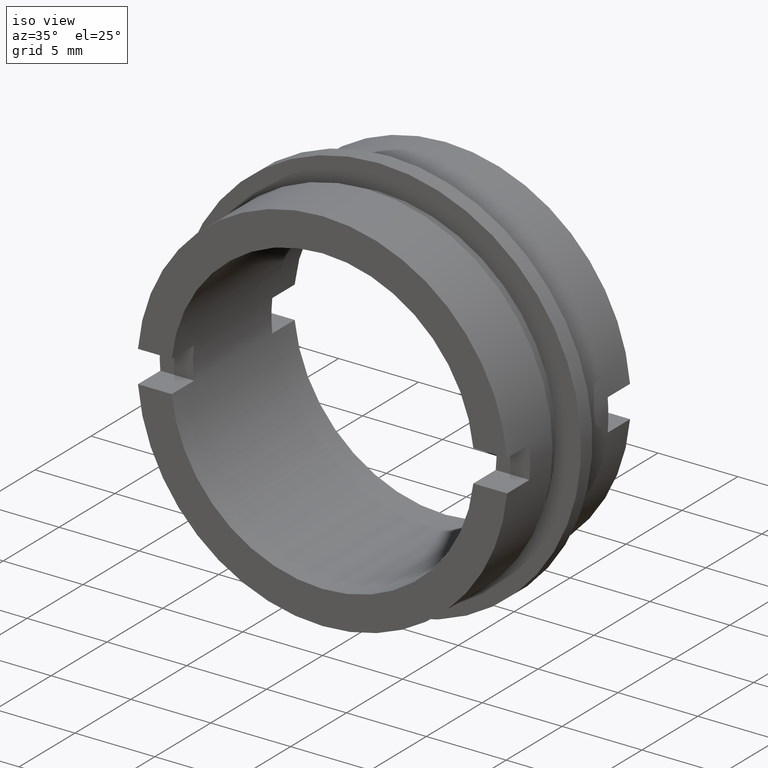
[diagram: clean part render]
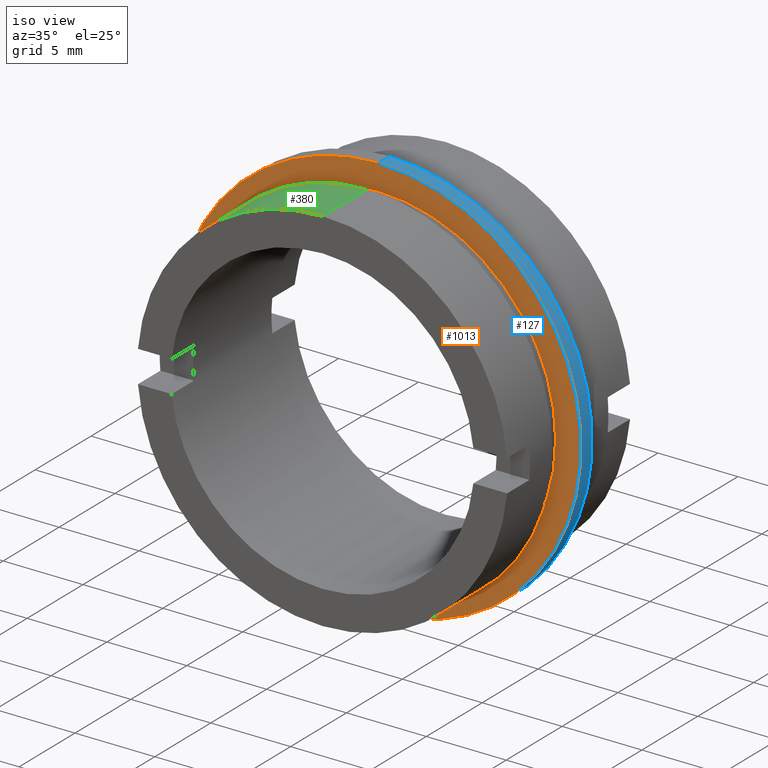
[diagram: same view with three faces highlighted in distinct colors, each labeled with its STEP entity id]
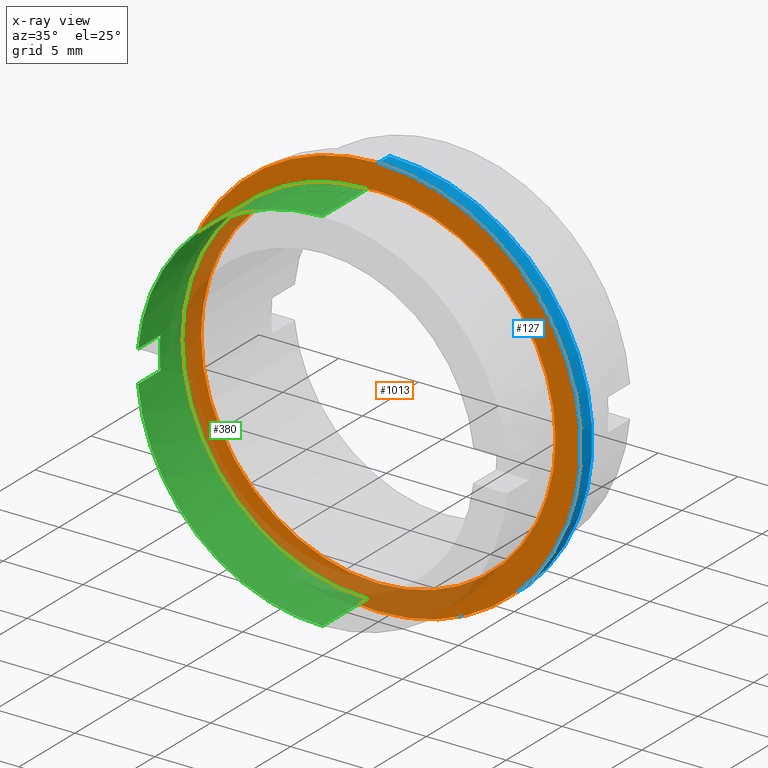
[diagram: x-ray of the same camera — body ghosted, the three highlighted faces saturated]
A machine part, iso view with three faces highlighted in distinct colors.
The next image is the same camera in x-ray (body ghosted, the three faces saturated) — at least one of them is partly hidden behind the body in this view.
Their STEP definitions:

[orange] entity #1013 — the highlighted planar face has unit normal (0, -1, 0).
#14 = AXIS2_PLACEMENT_3D ( 'NONE', #586, #1104, #495 ) ;
#35 = AXIS2_PLACEMENT_3D ( 'NONE', #533, #1051, #438 ) ;
#36 = EDGE_LOOP ( 'NONE', ( #754, #473 ) ) ;
#48 = VERTEX_POINT ( 'NONE', #878 ) ;
#147 = EDGE_CURVE ( 'NONE', #567, #981, #762, .T. ) ;
#148 = DIRECTION ( 'NONE',  ( -0.0000000000000000000, 1.000000000000000000, -0.0000000000000000000 ) ) ;
#154 = CARTESIAN_POINT ( 'NONE',  ( -12.69999999999999900, 5.000000000000000000, 0.0000000000000000000 ) ) ;
#184 = EDGE_LOOP ( 'NONE', ( #638, #450 ) ) ;
#285 = CARTESIAN_POINT ( 'NONE',  ( 0.0000000000000000000, 5.000000000000000900, 11.09999999999999800 ) ) ;
#322 = CIRCLE ( 'NONE', #14, 12.69999999999999900 ) ;
#328 = CARTESIAN_POINT ( 'NONE',  ( 0.0000000000000000000, 5.000000000000000900, 12.69999999999999900 ) ) ;
#356 = AXIS2_PLACEMENT_3D ( 'NONE', #154, #504, #1037 ) ;
#412 = DIRECTION ( 'NONE',  ( 0.0000000000000000000, 0.0000000000000000000, 1.000000000000000000 ) ) ;
#438 = DIRECTION ( 'NONE',  ( 0.0000000000000000000, 0.0000000000000000000, 1.000000000000000000 ) ) ;
#439 = CIRCLE ( 'NONE', #35, 11.09999999999999800 ) ;
#450 = ORIENTED_EDGE ( 'NONE', *, *, #747, .F. ) ;
#473 = ORIENTED_EDGE ( 'NONE', *, *, #599, .T. ) ;
#495 = DIRECTION ( 'NONE',  ( 0.0000000000000000000, 0.0000000000000000000, 1.000000000000000000 ) ) ;
#504 = DIRECTION ( 'NONE',  ( 0.0000000000000000000, -1.000000000000000000, 0.0000000000000000000 ) ) ;
#533 = CARTESIAN_POINT ( 'NONE',  ( 0.0000000000000000000, 5.000000000000000900, 0.0000000000000000000 ) ) ;
#538 = CIRCLE ( 'NONE', #872, 12.69999999999999900 ) ;
#567 = VERTEX_POINT ( 'NONE', #285 ) ;
#586 = CARTESIAN_POINT ( 'NONE',  ( 0.0000000000000000000, 5.000000000000000900, 0.0000000000000000000 ) ) ;
#590 = FACE_BOUND ( 'NONE', #36, .T. ) ;
#599 = EDGE_CURVE ( 'NONE', #981, #567, #439, .T. ) ;
#606 = AXIS2_PLACEMENT_3D ( 'NONE', #885, #714, #412 ) ;
#638 = ORIENTED_EDGE ( 'NONE', *, *, #797, .F. ) ;
#681 = DIRECTION ( 'NONE',  ( 0.0000000000000000000, 0.0000000000000000000, 1.000000000000000000 ) ) ;
#714 = DIRECTION ( 'NONE',  ( -0.0000000000000000000, 1.000000000000000000, -0.0000000000000000000 ) ) ;
#747 = EDGE_CURVE ( 'NONE', #48, #994, #538, .T. ) ;
#754 = ORIENTED_EDGE ( 'NONE', *, *, #147, .T. ) ;
#762 = CIRCLE ( 'NONE', #606, 11.09999999999999800 ) ;
#782 = CARTESIAN_POINT ( 'NONE',  ( 0.0000000000000000000, 5.000000000000000900, 0.0000000000000000000 ) ) ;
#797 = EDGE_CURVE ( 'NONE', #994, #48, #322, .T. ) ;
#872 = AXIS2_PLACEMENT_3D ( 'NONE', #782, #148, #681 ) ;
#878 = CARTESIAN_POINT ( 'NONE',  ( 1.555301434917138400E-015, 5.000000000000000900, -12.69999999999999900 ) ) ;
#885 = CARTESIAN_POINT ( 'NONE',  ( 0.0000000000000000000, 5.000000000000000900, 0.0000000000000000000 ) ) ;
#959 = CARTESIAN_POINT ( 'NONE',  ( 1.359357947053562000E-015, 5.000000000000000900, -11.09999999999999800 ) ) ;
#981 = VERTEX_POINT ( 'NONE', #959 ) ;
#994 = VERTEX_POINT ( 'NONE', #328 ) ;
#1013 = ADVANCED_FACE ( 'NONE', ( #590, #1052 ), #1116, .T. ) ;
#1037 = DIRECTION ( 'NONE',  ( 0.0000000000000000000, -0.0000000000000000000, -1.000000000000000000 ) ) ;
#1051 = DIRECTION ( 'NONE',  ( -0.0000000000000000000, 1.000000000000000000, -0.0000000000000000000 ) ) ;
#1052 = FACE_OUTER_BOUND ( 'NONE', #184, .T. ) ;
#1104 = DIRECTION ( 'NONE',  ( -0.0000000000000000000, 1.000000000000000000, -0.0000000000000000000 ) ) ;
#1116 = PLANE ( 'NONE',  #356 ) ;

[blue] entity #127 — the highlighted cylindrical surface (partial cylindrical patch) has radius 12.7 mm, axis along (-0, 1, -0).
#14 = AXIS2_PLACEMENT_3D ( 'NONE', #586, #1104, #495 ) ;
#48 = VERTEX_POINT ( 'NONE', #878 ) ;
#80 = LINE ( 'NONE', #713, #763 ) ;
#127 = ADVANCED_FACE ( 'NONE', ( #555 ), #989, .T. ) ;
#278 = ORIENTED_EDGE ( 'NONE', *, *, #379, .T. ) ;
#322 = CIRCLE ( 'NONE', #14, 12.69999999999999900 ) ;
#328 = CARTESIAN_POINT ( 'NONE',  ( 0.0000000000000000000, 5.000000000000000900, 12.69999999999999900 ) ) ;
#379 = EDGE_CURVE ( 'NONE', #48, #580, #881, .T. ) ;
#407 = CARTESIAN_POINT ( 'NONE',  ( 0.0000000000000000000, 5.999999999999998200, 12.69999999999999900 ) ) ;
#447 = DIRECTION ( 'NONE',  ( 0.0000000000000000000, 0.0000000000000000000, 1.000000000000000000 ) ) ;
#455 = DIRECTION ( 'NONE',  ( -0.0000000000000000000, 1.000000000000000000, -0.0000000000000000000 ) ) ;
#456 = EDGE_CURVE ( 'NONE', #1071, #580, #943, .T. ) ;
#466 = DIRECTION ( 'NONE',  ( 0.0000000000000000000, 0.0000000000000000000, 1.000000000000000000 ) ) ;
#495 = DIRECTION ( 'NONE',  ( 0.0000000000000000000, 0.0000000000000000000, 1.000000000000000000 ) ) ;
#555 = FACE_OUTER_BOUND ( 'NONE', #658, .T. ) ;
#562 = CARTESIAN_POINT ( 'NONE',  ( 0.0000000000000000000, 5.999999999999998200, 0.0000000000000000000 ) ) ;
#575 = EDGE_CURVE ( 'NONE', #994, #1071, #80, .T. ) ;
#580 = VERTEX_POINT ( 'NONE', #971 ) ;
#586 = CARTESIAN_POINT ( 'NONE',  ( 0.0000000000000000000, 5.000000000000000900, 0.0000000000000000000 ) ) ;
#609 = ORIENTED_EDGE ( 'NONE', *, *, #797, .T. ) ;
#627 = DIRECTION ( 'NONE',  ( -0.0000000000000000000, 1.000000000000000000, -0.0000000000000000000 ) ) ;
#658 = EDGE_LOOP ( 'NONE', ( #609, #278, #676, #963 ) ) ;
#663 = AXIS2_PLACEMENT_3D ( 'NONE', #977, #455, #447 ) ;
#676 = ORIENTED_EDGE ( 'NONE', *, *, #456, .F. ) ;
#713 = CARTESIAN_POINT ( 'NONE',  ( 0.0000000000000000000, 22.67749945107591400, 12.69999999999999900 ) ) ;
#763 = VECTOR ( 'NONE', #627, 1000.000000000000000 ) ;
#797 = EDGE_CURVE ( 'NONE', #994, #48, #322, .T. ) ;
#820 = AXIS2_PLACEMENT_3D ( 'NONE', #562, #1075, #466 ) ;
#878 = CARTESIAN_POINT ( 'NONE',  ( 1.555301434917138400E-015, 5.000000000000000900, -12.69999999999999900 ) ) ;
#881 = LINE ( 'NONE', #918, #1080 ) ;
#918 = CARTESIAN_POINT ( 'NONE',  ( 1.555301434917138400E-015, 22.67749945107591400, -12.69999999999999900 ) ) ;
#943 = CIRCLE ( 'NONE', #820, 12.69999999999999900 ) ;
#963 = ORIENTED_EDGE ( 'NONE', *, *, #575, .F. ) ;
#971 = CARTESIAN_POINT ( 'NONE',  ( 1.555301434917138400E-015, 5.999999999999998200, -12.69999999999999900 ) ) ;
#977 = CARTESIAN_POINT ( 'NONE',  ( 0.0000000000000000000, 22.67749945107591400, 0.0000000000000000000 ) ) ;
#989 = CYLINDRICAL_SURFACE ( 'NONE', #663, 12.69999999999999900 ) ;
#994 = VERTEX_POINT ( 'NONE', #328 ) ;
#1071 = VERTEX_POINT ( 'NONE', #407 ) ;
#1075 = DIRECTION ( 'NONE',  ( -0.0000000000000000000, 1.000000000000000000, -0.0000000000000000000 ) ) ;
#1080 = VECTOR ( 'NONE', #1092, 1000.000000000000000 ) ;
#1092 = DIRECTION ( 'NONE',  ( -0.0000000000000000000, 1.000000000000000000, -0.0000000000000000000 ) ) ;
#1104 = DIRECTION ( 'NONE',  ( -0.0000000000000000000, 1.000000000000000000, -0.0000000000000000000 ) ) ;

[green] entity #380 — the highlighted cylindrical surface (partial cylindrical patch) has radius 11.6 mm, axis along (-0, 1, -0).
#17 = LINE ( 'NONE', #584, #708 ) ;
#25 = ORIENTED_EDGE ( 'NONE', *, *, #290, .T. ) ;
#30 = DIRECTION ( 'NONE',  ( -0.0000000000000000000, 1.000000000000000000, -0.0000000000000000000 ) ) ;
#38 = DIRECTION ( 'NONE',  ( 0.0000000000000000000, -1.000000000000000000, 0.0000000000000000000 ) ) ;
#54 = CARTESIAN_POINT ( 'NONE',  ( 0.0000000000000000000, 4.000000000000000000, 0.0000000000000000000 ) ) ;
#65 = VERTEX_POINT ( 'NONE', #304 ) ;
#73 = DIRECTION ( 'NONE',  ( -0.0000000000000000000, 1.000000000000000000, -0.0000000000000000000 ) ) ;
#100 = EDGE_CURVE ( 'NONE', #65, #736, #104, .T. ) ;
#104 = CIRCLE ( 'NONE', #180, 11.59999999999999800 ) ;
#131 = CARTESIAN_POINT ( 'NONE',  ( -11.55681617055493000, 1.999999999999998200, 1.000000000000000200 ) ) ;
#137 = VECTOR ( 'NONE', #238, 1000.000000000000000 ) ;
#143 = ORIENTED_EDGE ( 'NONE', *, *, #558, .T. ) ;
#158 = AXIS2_PLACEMENT_3D ( 'NONE', #433, #961, #343 ) ;
#173 = FACE_OUTER_BOUND ( 'NONE', #205, .T. ) ;
#180 = AXIS2_PLACEMENT_3D ( 'NONE', #335, #252, #957 ) ;
#193 = CIRCLE ( 'NONE', #158, 11.59999999999999800 ) ;
#205 = EDGE_LOOP ( 'NONE', ( #706, #985, #721, #1055, #550, #143, #25, #1033 ) ) ;
#228 = CARTESIAN_POINT ( 'NONE',  ( -11.55681617055492800, 2.000000000000000000, -0.9999999999999995600 ) ) ;
#238 = DIRECTION ( 'NONE',  ( -0.0000000000000000000, 1.000000000000000000, -0.0000000000000000000 ) ) ;
#250 = CARTESIAN_POINT ( 'NONE',  ( -11.55681617055493000, 22.67749945107591400, 1.000000000000003800 ) ) ;
#252 = DIRECTION ( 'NONE',  ( -0.0000000000000000000, 1.000000000000000000, -0.0000000000000000000 ) ) ;
#270 = VERTEX_POINT ( 'NONE', #228 ) ;
#290 = EDGE_CURVE ( 'NONE', #1123, #841, #17, .T. ) ;
#296 = CYLINDRICAL_SURFACE ( 'NONE', #585, 11.59999999999999800 ) ;
#304 = CARTESIAN_POINT ( 'NONE',  ( 1.420590287010929300E-015, 0.0000000000000000000, -11.59999999999999800 ) ) ;
#312 = VERTEX_POINT ( 'NONE', #131 ) ;
#332 = EDGE_CURVE ( 'NONE', #270, #736, #908, .T. ) ;
#335 = CARTESIAN_POINT ( 'NONE',  ( 0.0000000000000000000, 0.0000000000000000000, 0.0000000000000000000 ) ) ;
#343 = DIRECTION ( 'NONE',  ( 0.0000000000000000000, 0.0000000000000000000, 1.000000000000000000 ) ) ;
#371 = LINE ( 'NONE', #1121, #137 ) ;
#380 = ADVANCED_FACE ( 'NONE', ( #173 ), #296, .T. ) ;
#389 = CIRCLE ( 'NONE', #478, 11.59999999999999800 ) ;
#393 = CARTESIAN_POINT ( 'NONE',  ( -11.55681617055492800, 22.67749945107591400, -0.9999999999999943400 ) ) ;
#409 = AXIS2_PLACEMENT_3D ( 'NONE', #54, #587, #1109 ) ;
#433 = CARTESIAN_POINT ( 'NONE',  ( 0.0000000000000000000, 1.999999999999998200, 0.0000000000000000000 ) ) ;
#454 = DIRECTION ( 'NONE',  ( -0.0000000000000000000, 1.000000000000000000, -0.0000000000000000000 ) ) ;
#478 = AXIS2_PLACEMENT_3D ( 'NONE', #1064, #454, #980 ) ;
#486 = DIRECTION ( 'NONE',  ( -0.0000000000000000000, 1.000000000000000000, -0.0000000000000000000 ) ) ;
#503 = CARTESIAN_POINT ( 'NONE',  ( 0.0000000000000000000, 4.000000000000000000, 11.59999999999999800 ) ) ;
#544 = VERTEX_POINT ( 'NONE', #984 ) ;
#550 = ORIENTED_EDGE ( 'NONE', *, *, #869, .F. ) ;
#558 = EDGE_CURVE ( 'NONE', #544, #1123, #389, .T. ) ;
#584 = CARTESIAN_POINT ( 'NONE',  ( 0.0000000000000000000, 22.67749945107591400, 11.59999999999999800 ) ) ;
#585 = AXIS2_PLACEMENT_3D ( 'NONE', #661, #30, #831 ) ;
#587 = DIRECTION ( 'NONE',  ( -0.0000000000000000000, 1.000000000000000000, -0.0000000000000000000 ) ) ;
#635 = EDGE_CURVE ( 'NONE', #312, #270, #193, .T. ) ;
#661 = CARTESIAN_POINT ( 'NONE',  ( 0.0000000000000000000, 22.67749945107591400, 0.0000000000000000000 ) ) ;
#706 = ORIENTED_EDGE ( 'NONE', *, *, #1000, .F. ) ;
#708 = VECTOR ( 'NONE', #486, 1000.000000000000000 ) ;
#721 = ORIENTED_EDGE ( 'NONE', *, *, #332, .F. ) ;
#736 = VERTEX_POINT ( 'NONE', #1118 ) ;
#831 = DIRECTION ( 'NONE',  ( 0.0000000000000000000, 0.0000000000000000000, 1.000000000000000000 ) ) ;
#841 = VERTEX_POINT ( 'NONE', #503 ) ;
#864 = VECTOR ( 'NONE', #73, 1000.000000000000000 ) ;
#869 = EDGE_CURVE ( 'NONE', #544, #312, #1088, .T. ) ;
#897 = VERTEX_POINT ( 'NONE', #1042 ) ;
#908 = LINE ( 'NONE', #393, #1108 ) ;
#923 = CARTESIAN_POINT ( 'NONE',  ( 0.0000000000000000000, 0.0000000000000000000, 11.59999999999999800 ) ) ;
#957 = DIRECTION ( 'NONE',  ( 0.0000000000000000000, 0.0000000000000000000, 1.000000000000000000 ) ) ;
#961 = DIRECTION ( 'NONE',  ( -0.0000000000000000000, -1.000000000000000000, -0.0000000000000000000 ) ) ;
#980 = DIRECTION ( 'NONE',  ( 0.0000000000000000000, 0.0000000000000000000, 1.000000000000000000 ) ) ;
#984 = CARTESIAN_POINT ( 'NONE',  ( -11.55681617055493000, 0.0000000000000000000, 1.000000000000000000 ) ) ;
#985 = ORIENTED_EDGE ( 'NONE', *, *, #100, .T. ) ;
#1000 = EDGE_CURVE ( 'NONE', #65, #897, #371, .T. ) ;
#1029 = CIRCLE ( 'NONE', #409, 11.59999999999999800 ) ;
#1033 = ORIENTED_EDGE ( 'NONE', *, *, #1063, .F. ) ;
#1042 = CARTESIAN_POINT ( 'NONE',  ( 1.420590287010929300E-015, 4.000000000000000000, -11.59999999999999800 ) ) ;
#1055 = ORIENTED_EDGE ( 'NONE', *, *, #635, .F. ) ;
#1063 = EDGE_CURVE ( 'NONE', #897, #841, #1029, .T. ) ;
#1064 = CARTESIAN_POINT ( 'NONE',  ( 0.0000000000000000000, 0.0000000000000000000, 0.0000000000000000000 ) ) ;
#1088 = LINE ( 'NONE', #250, #864 ) ;
#1108 = VECTOR ( 'NONE', #38, 1000.000000000000000 ) ;
#1109 = DIRECTION ( 'NONE',  ( 0.0000000000000000000, 0.0000000000000000000, 1.000000000000000000 ) ) ;
#1118 = CARTESIAN_POINT ( 'NONE',  ( -11.55681617055493000, 0.0000000000000000000, -1.000000000000000000 ) ) ;
#1121 = CARTESIAN_POINT ( 'NONE',  ( 1.420590287010929300E-015, 22.67749945107591400, -11.59999999999999800 ) ) ;
#1123 = VERTEX_POINT ( 'NONE', #923 ) ;